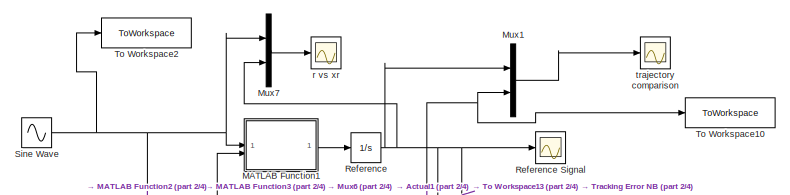
[diagram: root canvas - part 1/4, top center region]
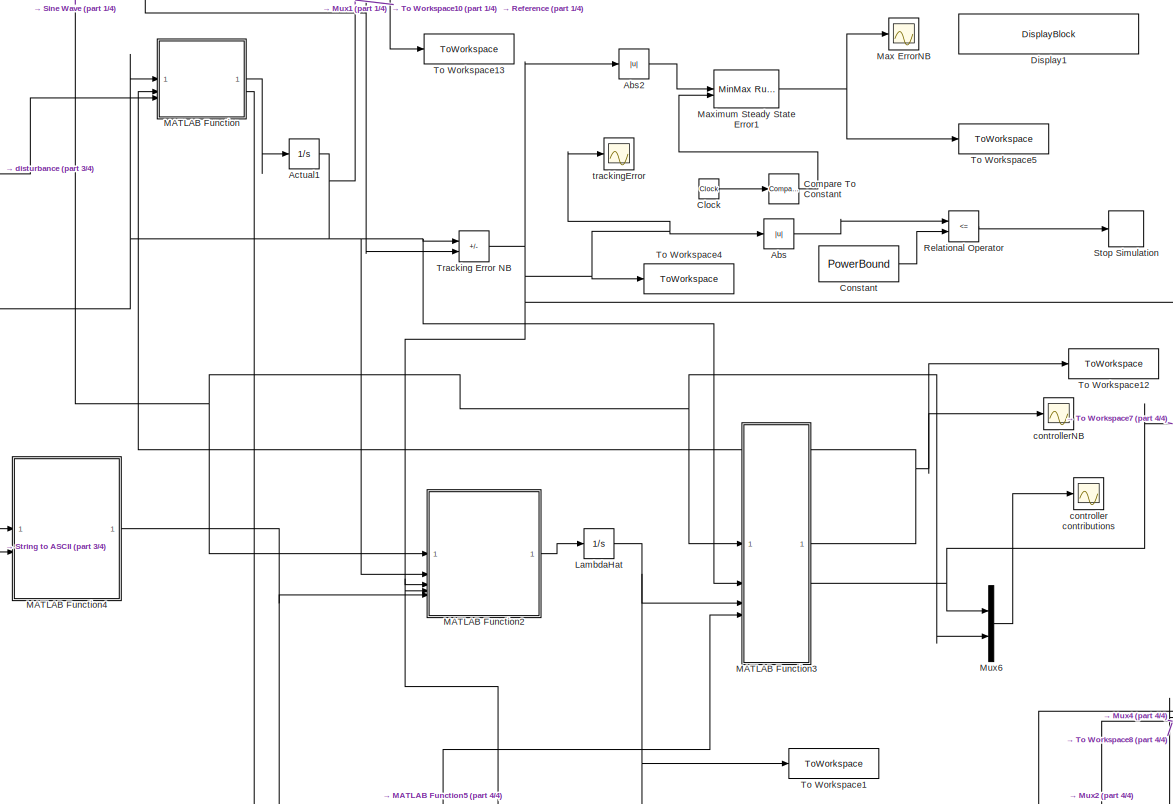
[diagram: root canvas - part 2/4, central region]
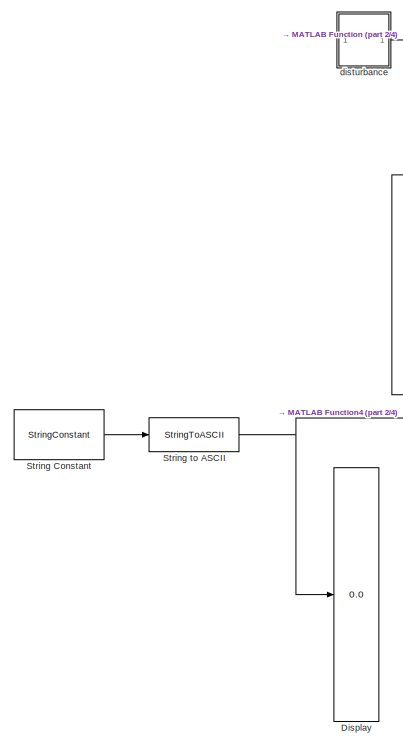
[diagram: root canvas - part 3/4, middle left region]
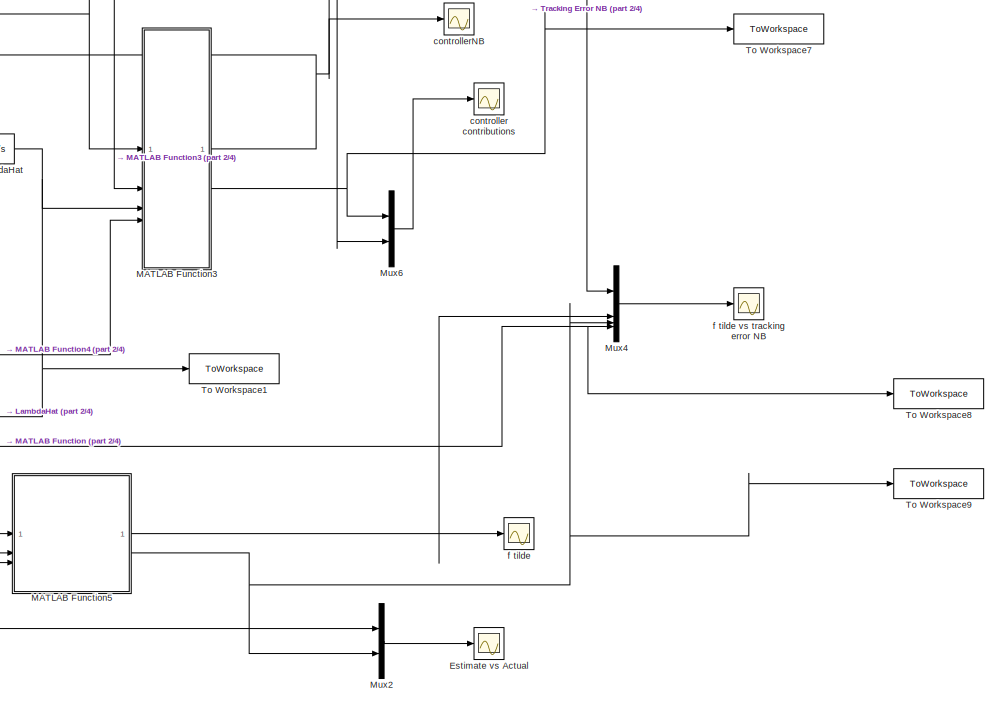
[diagram: root canvas - part 4/4, bottom right region]
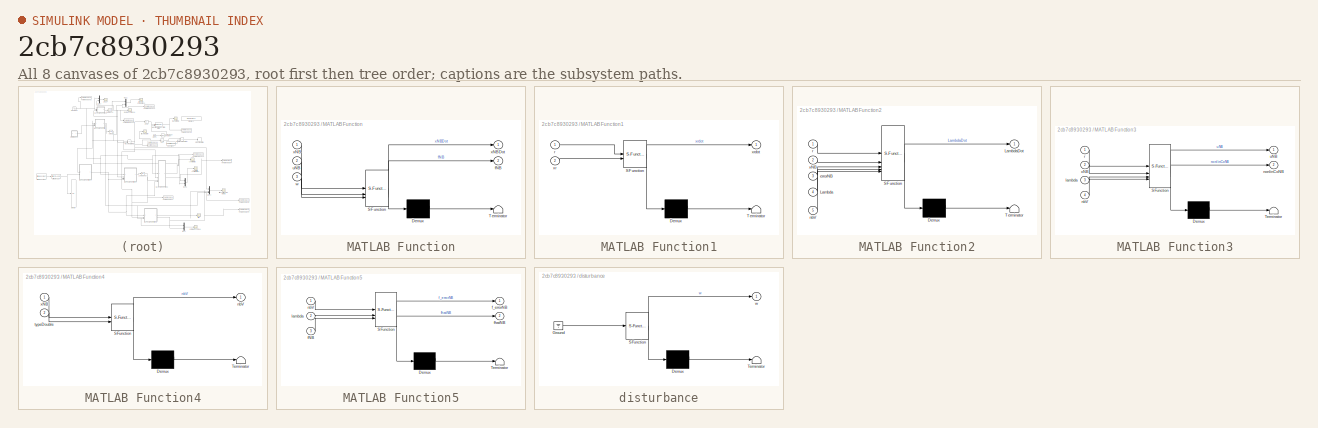
[diagram: thumbnail index - all 8 canvases of the model, root first then tree order]
MODEL slx_2cb7c8930293
KIND model
CONFIG AbsTol = 1e-4
CONFIG EnableMultiTasking = off
CONFIG FixedStep = 1e-5
CONFIG MaxStep = auto
CONFIG MinStep = auto
CONFIG RelTol = 1e-3
CONFIG SampleTimeConstraint = Unconstrained
CONFIG SolverName = ode45
CONFIG StartTime = 0.0
CONFIG StopTime = 20
BLOCK [Reference]  Maximum Steady State Error1  REF=simulink/Math
Operations/MinMax
Running
Resettable
  SourceBlock = simulink/Math\nOperations/MinMax\nRunning\nResettable
  SourceType = MinMax Running Resettable
BLOCK [Abs] Abs
  SaturateOnIntegerOverflow = off
BLOCK [Abs] Abs2
  SaturateOnIntegerOverflow = off
BLOCK [Integrator] Actual1
  InitialCondition = x0
BLOCK [Clock] Clock
  DisplayTime = on
BLOCK [Reference] Compare To Constant  REF=simulink/Logic and Bit
Operations/Compare
To Constant
  SourceBlock = simulink/Logic and Bit\nOperations/Compare\nTo Constant
  SourceType = Compare To Constant
BLOCK [Constant] Constant
  Value = PowerBound
BLOCK [Display] Display
  Decimation = 1
BLOCK [DisplayBlock] Display1
  LabelPosition = Hide
  Transparency = 1
BLOCK [Scope] Estimate vs Actual
  Floating = off
  NumInputPorts = 1
  ScopeSpecificationString = Simulink.scopes.TimeScopeBlockCfg('CurrentConfiguration', extmgr.ConfigurationSet(extmgr.Configuration('Core','General UI',true),extmgr.Configuration('Core','Source UI',true),extmgr.Configuration('Sources','WiredSimulink',true,'DataLoggingVariableName','ScopeData1'),extmgr.Configuration('Visuals','Time Domain',true,'SerializedDisplays',{struct('MinYLimReal','-5.03018','MaxYLimReal','5.27539','YLab...<+1602ch>
BLOCK [Integrator] LambdaHat
  InitialCondition = lambda0
BLOCK [SubSystem] MATLAB Function
  ErrorFcn = Stateflow.Translate.translate
  PermitHierarchicalResolution = ExplicitOnly
  SFBlockType = MATLAB Function
  TreatAsAtomicUnit = on
BLOCK [Demux] MATLAB Function/ Demux 
  Outputs = 1
BLOCK [S-Function] MATLAB Function/ SFunction 
  EnableBusSupport = on
  FunctionName = sf_sfun
  Parameters = A,B,Dim,Scl,fMag,interps,targetCoefs,targetNu,targetScale
  PortCounts = [3 3]
  SFcnIsStateOwnerBlock = off
  SFunctionDeploymentMode = off
  Tag = Stateflow S-Function 2
BLOCK [Terminator] MATLAB Function/ Terminator 
BLOCK [Outport] MATLAB Function/fNB
  Port = 2
BLOCK [Inport] MATLAB Function/uNB
  Port = 2
BLOCK [Inport] MATLAB Function/w
  Port = 3
BLOCK [Inport] MATLAB Function/xNB
BLOCK [Outport] MATLAB Function/xNBDot
BLOCK [SubSystem] MATLAB Function1
  ErrorFcn = Stateflow.Translate.translate
  PermitHierarchicalResolution = ExplicitOnly
  SFBlockType = MATLAB Function
  TreatAsAtomicUnit = on
BLOCK [Demux] MATLAB Function1/ Demux 
  Outputs = 1
BLOCK [S-Function] MATLAB Function1/ SFunction 
  EnableBusSupport = on
  FunctionName = sf_sfun
  Parameters = Ar,Br
  PortCounts = [2 2]
  SFcnIsStateOwnerBlock = off
  SFunctionDeploymentMode = off
  Tag = Stateflow S-Function 1
BLOCK [Terminator] MATLAB Function1/ Terminator 
BLOCK [Inport] MATLAB Function1/r
BLOCK [Inport] MATLAB Function1/xr
  Port = 2
BLOCK [Outport] MATLAB Function1/xrdot
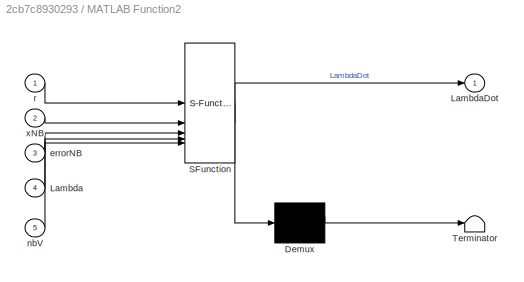
BLOCK [SubSystem] MATLAB Function2
  ErrorFcn = Stateflow.Translate.translate
  PermitHierarchicalResolution = ExplicitOnly
  SFBlockType = MATLAB Function
  TreatAsAtomicUnit = on
BLOCK [Demux] MATLAB Function2/ Demux 
  Outputs = 1
BLOCK [S-Function] MATLAB Function2/ SFunction 
  EnableBusSupport = on
  FunctionName = sf_sfun
  Parameters = K,epsilon,gf,sigma
  PortCounts = [5 2]
  SFcnIsStateOwnerBlock = off
  SFunctionDeploymentMode = off
  Tag = Stateflow S-Function 3
BLOCK [Terminator] MATLAB Function2/ Terminator 
BLOCK [Inport] MATLAB Function2/Lambda
  Port = 4
BLOCK [Outport] MATLAB Function2/LambdaDot
BLOCK [Inport] MATLAB Function2/errorNB
  Port = 3
BLOCK [Inport] MATLAB Function2/nbV
  Port = 5
BLOCK [Inport] MATLAB Function2/r
BLOCK [Inport] MATLAB Function2/xNB
  Port = 2
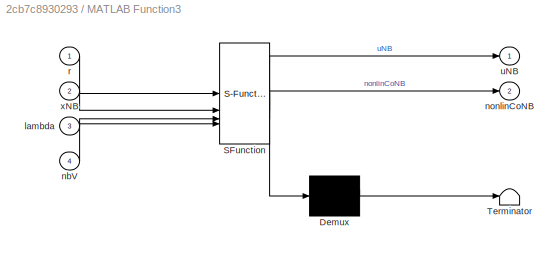
BLOCK [SubSystem] MATLAB Function3
  ErrorFcn = Stateflow.Translate.translate
  PermitHierarchicalResolution = ExplicitOnly
  SFBlockType = MATLAB Function
  TreatAsAtomicUnit = on
BLOCK [Demux] MATLAB Function3/ Demux 
  Outputs = 1
BLOCK [S-Function] MATLAB Function3/ SFunction 
  EnableBusSupport = on
  FunctionName = sf_sfun
  Parameters = B,epsilon
  PortCounts = [4 3]
  SFcnIsStateOwnerBlock = off
  SFunctionDeploymentMode = off
  Tag = Stateflow S-Function 4
BLOCK [Terminator] MATLAB Function3/ Terminator 
BLOCK [Inport] MATLAB Function3/lambda
  Port = 3
BLOCK [Inport] MATLAB Function3/nbV
  Port = 4
BLOCK [Outport] MATLAB Function3/nonlinCoNB
  Port = 2
BLOCK [Inport] MATLAB Function3/r
BLOCK [Outport] MATLAB Function3/uNB
BLOCK [Inport] MATLAB Function3/xNB
  Port = 2
BLOCK [SubSystem] MATLAB Function4
  ErrorFcn = Stateflow.Translate.translate
  PermitHierarchicalResolution = ExplicitOnly
  SFBlockType = MATLAB Function
  TreatAsAtomicUnit = on
BLOCK [Demux] MATLAB Function4/ Demux 
  Outputs = 1
BLOCK [S-Function] MATLAB Function4/ SFunction 
  EnableBusSupport = on
  FunctionName = sf_sfun
  Parameters = K,V,centers,par,scale
  PortCounts = [2 2]
  SFcnIsStateOwnerBlock = off
  SFunctionDeploymentMode = off
  Tag = Stateflow S-Function 5
BLOCK [Terminator] MATLAB Function4/ Terminator 
BLOCK [Outport] MATLAB Function4/nbV
BLOCK [Inport] MATLAB Function4/typeDouble
  Port = 2
BLOCK [Inport] MATLAB Function4/xNB
BLOCK [SubSystem] MATLAB Function5
  ErrorFcn = Stateflow.Translate.translate
  PermitHierarchicalResolution = ExplicitOnly
  SFBlockType = MATLAB Function
  TreatAsAtomicUnit = on
BLOCK [Demux] MATLAB Function5/ Demux 
  Outputs = 1
BLOCK [S-Function] MATLAB Function5/ SFunction 
  EnableBusSupport = on
  FunctionName = sf_sfun
  PortCounts = [3 3]
  SFcnIsStateOwnerBlock = off
  SFunctionDeploymentMode = off
  Tag = Stateflow S-Function 6
BLOCK [Terminator] MATLAB Function5/ Terminator 
BLOCK [Inport] MATLAB Function5/fNB
  Port = 3
BLOCK [Outport] MATLAB Function5/f_errorNB
BLOCK [Outport] MATLAB Function5/fhatNB
  Port = 2
BLOCK [Inport] MATLAB Function5/lambda
  Port = 2
BLOCK [Inport] MATLAB Function5/nbV
BLOCK [Scope] Max ErrorNB
  Floating = off
  NumInputPorts = 1
  ScopeSpecificationString = Simulink.scopes.TimeScopeBlockCfg('CurrentConfiguration', extmgr.ConfigurationSet(extmgr.Configuration('Core','General UI',true),extmgr.Configuration('Core','Source UI',true),extmgr.Configuration('Sources','WiredSimulink',true,'DataLoggingVariableName','ScopeData1'),extmgr.Configuration('Visuals','Time Domain',true,'SerializedDisplays',{struct('MinYLimReal','-1.53696','MaxYLimReal','2.36845','YLab...<+1506ch>
BLOCK [Mux] Mux1
  DisplayOption = bar
  Inputs = 2
BLOCK [Mux] Mux2
  DisplayOption = bar
  Inputs = 2
BLOCK [Mux] Mux4
  DisplayOption = bar
BLOCK [Mux] Mux6
  DisplayOption = bar
  Inputs = 2
BLOCK [Mux] Mux7
  DisplayOption = bar
  Inputs = 2
BLOCK [Integrator] Reference
  InitialCondition = xr0
BLOCK [Scope] Reference Signal
  Floating = off
  NumInputPorts = 1
  ScopeSpecificationString = Simulink.scopes.TimeScopeBlockCfg('CurrentConfiguration', extmgr.ConfigurationSet(extmgr.Configuration('Core','General UI',true,'FigureColor',[1 1 1]),extmgr.Configuration('Core','Source UI',true),extmgr.Configuration('Sources','WiredSimulink',true,'DataLoggingVariableName','ScopeData1'),extmgr.Configuration('Visuals','Time Domain',true,'SerializedDisplays',{struct('MinYLimReal','-12.43782','MaxYL...<+1950ch>
BLOCK [RelationalOperator] Relational Operator
  InputSameDT = off
  Operator = <=
  OutDataTypeStr = boolean
  RndMeth = Simplest
BLOCK [Sin] Sine Wave
  Amplitude = SNU
  Frequency = 2*pi*0.1
  SampleTime = 0
BLOCK [Stop] Stop Simulation
BLOCK [StringConstant] String Constant
  String = type
BLOCK [StringToASCII] String to ASCII
BLOCK [ToWorkspace] To Workspace1
  FixptAsFi = on
  MaxDataPoints = inf
  SampleTime = -1
  SaveFormat = Timeseries
  VariableName = lambdaHat
BLOCK [ToWorkspace] To Workspace10
  FixptAsFi = on
  MaxDataPoints = inf
  SampleTime = -1
  SaveFormat = Timeseries
  VariableName = xNB
BLOCK [ToWorkspace] To Workspace12
  FixptAsFi = on
  MaxDataPoints = inf
  SampleTime = -1
  SaveFormat = Timeseries
  VariableName = inputNB
BLOCK [ToWorkspace] To Workspace13
  FixptAsFi = on
  MaxDataPoints = inf
  SampleTime = -1
  SaveFormat = Timeseries
  VariableName = xr
BLOCK [ToWorkspace] To Workspace2
  FixptAsFi = on
  MaxDataPoints = inf
  SampleTime = -1
  SaveFormat = Timeseries
  VariableName = reference
BLOCK [ToWorkspace] To Workspace4
  FixptAsFi = on
  MaxDataPoints = inf
  SampleTime = -1
  SaveFormat = Timeseries
  VariableName = trackingErrorNB
BLOCK [ToWorkspace] To Workspace5
  FixptAsFi = on
  MaxDataPoints = inf
  SampleTime = -1
  SaveFormat = Timeseries
  VariableName = ssErrorNB
BLOCK [ToWorkspace] To Workspace7
  FixptAsFi = on
  MaxDataPoints = inf
  SampleTime = -1
  SaveFormat = Timeseries
  VariableName = nonCo
BLOCK [ToWorkspace] To Workspace8
  FixptAsFi = on
  MaxDataPoints = inf
  SampleTime = -1
  SaveFormat = Timeseries
  VariableName = fNB
BLOCK [ToWorkspace] To Workspace9
  FixptAsFi = on
  MaxDataPoints = inf
  SampleTime = -1
  SaveFormat = Timeseries
  VariableName = fhatNB
BLOCK [Sum] Tracking Error NB
  IconShape = rectangular
  Inputs = +-
BLOCK [Scope] controller contributions
  Floating = off
  NumInputPorts = 1
  ScopeSpecificationString = Simulink.scopes.TimeScopeBlockCfg('CurrentConfiguration', extmgr.ConfigurationSet(extmgr.Configuration('Core','General UI',true),extmgr.Configuration('Core','Source UI',true),extmgr.Configuration('Sources','WiredSimulink',true,'DataLoggingVariableName','ScopeData3'),extmgr.Configuration('Visuals','Time Domain',true,'SerializedDisplays',{struct('MinYLimReal','-72.08658','MaxYLimReal','56.04413','YL...<+1576ch>
BLOCK [Scope] controllerNB
  Floating = off
  NumInputPorts = 1
  ScopeSpecificationString = Simulink.scopes.TimeScopeBlockCfg('CurrentConfiguration', extmgr.ConfigurationSet(extmgr.Configuration('Core','General UI',true),extmgr.Configuration('Core','Source UI',true),extmgr.Configuration('Sources','WiredSimulink',true,'DataLoggingVariableName','ScopeData1'),extmgr.Configuration('Visuals','Time Domain',true,'SerializedDisplays',{struct('MinYLimReal','-4.51046','MaxYLimReal','2.65868','YLab...<+1411ch>
BLOCK [SubSystem] disturbance
  ErrorFcn = Stateflow.Translate.translate
  PermitHierarchicalResolution = ExplicitOnly
  SFBlockType = MATLAB Function
  TreatAsAtomicUnit = on
BLOCK [Demux] disturbance/ Demux 
  Outputs = 1
BLOCK [Ground] disturbance/ Ground 
BLOCK [S-Function] disturbance/ SFunction 
  EnableBusSupport = on
  FunctionName = sf_sfun
  Parameters = delta
  PortCounts = [1 2]
  SFcnIsStateOwnerBlock = off
  SFunctionDeploymentMode = off
  Tag = Stateflow S-Function 7
BLOCK [Terminator] disturbance/ Terminator 
BLOCK [Outport] disturbance/w
BLOCK [Scope] f tilde
  Floating = off
  NumInputPorts = 1
  ScopeSpecificationString = Simulink.scopes.TimeScopeBlockCfg('CurrentConfiguration', extmgr.ConfigurationSet(extmgr.Configuration('Core','General UI',true),extmgr.Configuration('Core','Source UI',true),extmgr.Configuration('Sources','WiredSimulink',true,'DataLoggingVariableName','ScopeData3'),extmgr.Configuration('Visuals','Time Domain',true,'SerializedDisplays',{struct('MinYLimReal','-1.21765','MaxYLimReal','1.32584','YLab...<+1511ch>
BLOCK [Scope] f tilde vs tracking error NB
  Floating = off
  NumInputPorts = 1
  ScopeSpecificationString = Simulink.scopes.TimeScopeBlockCfg('CurrentConfiguration', extmgr.ConfigurationSet(extmgr.Configuration('Core','General UI',true),extmgr.Configuration('Core','Source UI',true),extmgr.Configuration('Sources','WiredSimulink',true,'DataLoggingVariableName','ScopeData1'),extmgr.Configuration('Visuals','Time Domain',true,'SerializedDisplays',{struct('MinYLimReal','-8.63539','MaxYLimReal','9.54658','YLab...<+1622ch>
BLOCK [Scope] r vs xr
  Floating = off
  NumInputPorts = 1
  ScopeSpecificationString = Simulink.scopes.TimeScopeBlockCfg('CurrentConfiguration', extmgr.ConfigurationSet(extmgr.Configuration('Core','General UI',true,'FigureColor',[1 1 1]),extmgr.Configuration('Core','Source UI',true),extmgr.Configuration('Sources','WiredSimulink',true,'DataLoggingVariableName','ScopeData2'),extmgr.Configuration('Visuals','Time Domain',true,'SerializedDisplays',{struct('MinYLimReal','-56.25583','MaxYL...<+1988ch>
BLOCK [Scope] trackingError
  Floating = off
  NumInputPorts = 1
  ScopeSpecificationString = Simulink.scopes.TimeScopeBlockCfg('CurrentConfiguration', extmgr.ConfigurationSet(extmgr.Configuration('Core','General UI',true,'FigureColor',[1 1 1]),extmgr.Configuration('Core','Source UI',true),extmgr.Configuration('Sources','WiredSimulink',true,'DataLoggingVariableName','ScopeData1'),extmgr.Configuration('Visuals','Time Domain',true,'SerializedDisplays',{struct('MinYLimReal','-0.07504','MaxYLi...<+2019ch>
BLOCK [Scope] trajectory comparison
  Floating = off
  NumInputPorts = 1
  ScopeSpecificationString = Simulink.scopes.TimeScopeBlockCfg('CurrentConfiguration', extmgr.ConfigurationSet(extmgr.Configuration('Core','General UI',true,'FigureColor',[1 1 1]),extmgr.Configuration('Core','Source UI',true),extmgr.Configuration('Sources','WiredSimulink',true,'DataLoggingVariableName','ScopeData1'),extmgr.Configuration('Visuals','Time Domain',true,'SerializedDisplays',{struct('MinYLimReal','-56.25583','MaxYL...<+1995ch>
NET  Maximum Steady State Error1:1 -> Max ErrorNB:1, To Workspace5:1
LINE Abs2:1 ->  Maximum Steady State Error1:1
LINE Abs:1 -> Relational Operator:1
NET Actual1:1 -> MATLAB Function2:2, MATLAB Function3:2, MATLAB Function4:1, MATLAB Function:1, Mux1:2, To Workspace10:1, Tracking Error NB:1
LINE Clock:1 -> Compare To Constant:1
LINE Compare To Constant:1 ->  Maximum Steady State Error1:2
LINE Constant:1 -> Relational Operator:2
NET LambdaHat:1 -> MATLAB Function2:4, MATLAB Function3:3, MATLAB Function5:2, To Workspace1:1
LINE MATLAB Function1:1 -> Reference:1
LINE MATLAB Function2:1 -> LambdaHat:1
NET MATLAB Function3:1 -> MATLAB Function:2, To Workspace12:1, controllerNB:1
NET MATLAB Function3:2 -> Mux6:1, To Workspace7:1
NET MATLAB Function4:1 -> MATLAB Function2:5, MATLAB Function3:4, MATLAB Function5:1
NET MATLAB Function5:1 -> Mux4:2, f tilde:1
NET MATLAB Function5:2 -> Mux2:2, Mux4:3, To Workspace9:1
LINE MATLAB Function:1 -> Actual1:1
NET MATLAB Function:2 -> MATLAB Function5:3, Mux2:1, Mux4:4, To Workspace8:1
LINE Mux1:1 -> trajectory comparison:1
LINE Mux2:1 -> Estimate vs Actual:1
LINE Mux4:1 -> f tilde vs tracking error NB:1
LINE Mux6:1 -> controller contributions:1
LINE Mux7:1 -> r vs xr:1
NET Reference:1 -> MATLAB Function1:2, Mux1:1, Mux7:2, Reference Signal:1, To Workspace13:1, Tracking Error NB:2
LINE Relational Operator:1 -> Stop Simulation:1
NET Sine Wave:1 -> MATLAB Function1:1, MATLAB Function2:1, MATLAB Function3:1, Mux6:2, Mux7:1, To Workspace2:1
LINE String Constant:1 -> String to ASCII:1
NET String to ASCII:1 -> Display:1, MATLAB Function4:2
NET Tracking Error NB:1 -> Abs2:1, Abs:1, MATLAB Function2:3, Mux4:1, To Workspace4:1, trackingError:1
LINE disturbance:1 -> MATLAB Function:3
note: NET lines group one-source signal fan-out (src -> all destinations, sorted); 1:1 wires keep LINE
CHART MATLAB Function3 states=1 transitions=1
  STATE_LABEL 'eML_blk_kernel()'
  STATE_LABEL "SCRIPT:\nfunction [uNB,nonlinCoNB] = controller(r, xNB, lambda, nbV,epsilon,B)\n% P= 1;\n% if B*P*x >= 0\n%     vN = epsilon;\n% else\n%     vN = -epsilon;\n% end\n% u = alpha*x+beta*r+theta'*knlV;\n% uNB = alphaNB*xNB+betaNB*r+lambda'*nbV;\n\n\nuNB = r + lambda'*nbV;\n\nnonlinCoNB = lambda'*nbV;\nend\n"
CHART MATLAB Function4 states=1 transitions=1
  STATE_LABEL 'eML_blk_kernel()'
  STATE_LABEL 'SCRIPT:\nfunction nbV  = Knl_Eval(xNB,centers,typeDouble, scale, par,K,V)\n    type = char(typeDouble(typeDouble~=0));\n    knlV = real(kermat(centers,xNB,type,par,scale));\n    N = length(centers);\n    z = diag(K);\n    v_x = zeros(N,1);\n    P = sqrt(K(1,1));\n\n    v_x(1) = knlV(1)/P;\n%     \n%     V = zeros(N,N);\n%     if N > 1\n%         V(:,1) = K(:,1)/P;\n%         w = V(:,1).^2;\n%         NN = V(2,:)...<+1100ch>'
CHART MATLAB Function5 states=1 transitions=1
  STATE_LABEL 'eML_blk_kernel()'
  STATE_LABEL "SCRIPT:\nfunction [f_errorNB,fhatNB]  = functionError(nbV,lambda,fNB)\nfhatNB = -lambda'*nbV;\nf_errorNB = fNB-fhatNB;\n\n\n\n\n"
CHART disturbance states=1 transitions=1
  STATE_LABEL 'eML_blk_kernel()'
  STATE_LABEL 'SCRIPT:\nfunction w   = plant(delta)\n% \nw = 0.5*rand;\n\n'
CHART MATLAB Function1 states=1 transitions=1
  STATE_LABEL 'eML_blk_kernel()'
  STATE_LABEL 'SCRIPT:\nfunction xrdot = reference(r,xr,Ar, Br)\n\nxrdot = Ar*xr+Br*r;\n'
CHART MATLAB Function states=1 transitions=1
  STATE_LABEL 'eML_blk_kernel()'
  STATE_LABEL "SCRIPT:\nfunction [xNBDot,fNB]  = plant(xNB,uNB,A, B,w,interps, targetCoefs,targetScale,targetNu, Dim,fMag,Scl)\n% \n% targetKnlV = real(kermat(interps,x,'ms',targetNu-Dim/2,targetScale));\n% f = targetCoefs'*targetKnlV;\n\n\n% targetKnlV_NB = real(kermat(interps,xNB,'ms',targetNu-Dim/2,targetScale));\n% fNB = targetCoefs'*targetKnlV_NB;\n\nfNB = fMag*tanh(Scl*xNB);\n\nxNBDot = A*xNB+B*(uNB+fNB+w);\n"
CHART MATLAB Function2 states=1 transitions=1
  STATE_LABEL 'eML_blk_kernel()'
  STATE_LABEL 'SCRIPT:\nfunction LambdaDot  = evo_law(gf, sigma, r, xNB, errorNB,  Lambda,  nbV,epsilon, K)\n\n\n%% Standard RKHS Deadzone\n\n\nif abs(errorNB) > epsilon\n    LambdaDot=-gf*nbV*errorNB;\nelse\n    LambdaDot=zeros(size(nbV));\nend\n\n\n\n'
CHART  states=0 transitions=0
CHART  states=0 transitions=0
CHART  states=0 transitions=0
CHART  states=0 transitions=0
CHART  states=0 transitions=0
CHART  states=0 transitions=0
CHART  states=0 transitions=0
